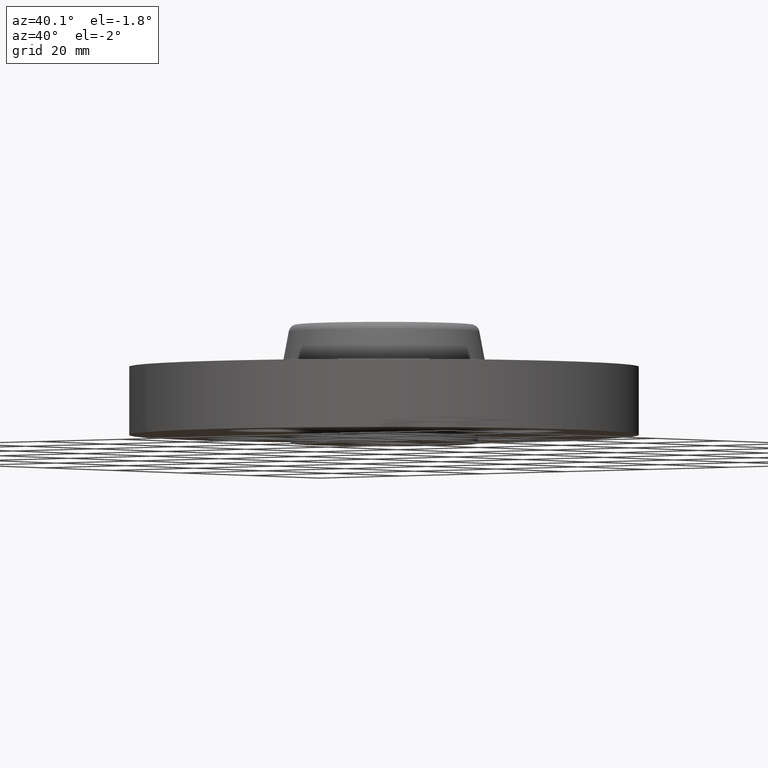
[diagram: clean part render]
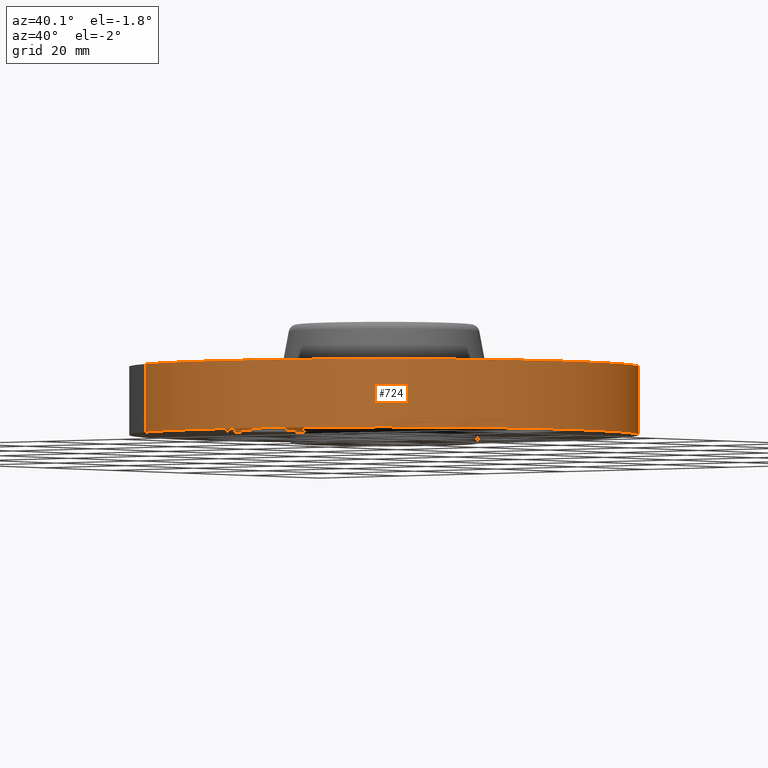
[diagram: same view with one face highlighted and labeled with its STEP entity id]
A machine part, auxiliary view. The second image highlights one B-rep face of the part: STEP entity #724.
In plain terms, the highlighted cylindrical surface (partial cylindrical patch) has radius 47.625 mm, axis along (0, 0, -1).
Its self-contained STEP definition (entity closure, byte-faithful):
#517=AXIS2_PLACEMENT_3D('Circle Axis2P3D',#515,#516,$) ;
#711=AXIS2_PLACEMENT_3D('Cylinder Axis2P3D',#708,#709,#710) ;
#715=AXIS2_PLACEMENT_3D('Circle Axis2P3D',#713,#714,$) ;
#510=CARTESIAN_POINT('Vertex',(-0.898922884866,-1.64546730358,0.)) ;
#512=CARTESIAN_POINT('Vertex',(0.898922884866,1.64546730354,0.)) ;
#515=CARTESIAN_POINT('Axis2P3D Location',(8.39223703654E-016,-1.81193992444E-011,0.)) ;
#675=CARTESIAN_POINT('Line Origine',(-0.898922884888,-1.64546730355,0.250000000001)) ;
#679=CARTESIAN_POINT('Vertex',(-0.898922884888,-1.64546730355,0.499999999997)) ;
#686=CARTESIAN_POINT('Vertex',(0.898922884888,1.64546730355,0.499999999997)) ;
#689=CARTESIAN_POINT('Line Origine',(0.898922884888,1.64546730355,0.250000000001)) ;
#708=CARTESIAN_POINT('Axis2P3D Location',(0.,0.,0.373750000001)) ;
#713=CARTESIAN_POINT('Axis2P3D Location',(0.,0.,0.499999999997)) ;
#516=DIRECTION('Axis2P3D Direction',(0.,0.,-0.0393700787402)) ;
#676=DIRECTION('Vector Direction',(0.,0.,-0.0393700787402)) ;
#690=DIRECTION('Vector Direction',(0.,0.,-0.0393700787402)) ;
#709=DIRECTION('Axis2P3D Direction',(0.,0.,-0.0393700787402)) ;
#710=DIRECTION('Axis2P3D XDirection',(0.0188750212049,0.0345504945626,0.)) ;
#714=DIRECTION('Axis2P3D Direction',(0.,0.,-0.0393700787402)) ;
#677=VECTOR('Line Direction',#676,0.0393700787402) ;
#691=VECTOR('Line Direction',#690,0.0393700787402) ;
#719=ORIENTED_EDGE('',*,*,#519,.F.) ;
#720=ORIENTED_EDGE('',*,*,#693,.T.) ;
#721=ORIENTED_EDGE('',*,*,#717,.T.) ;
#722=ORIENTED_EDGE('',*,*,#681,.F.) ;
#724=ADVANCED_FACE('PartBody',(#723),#712,.T.) ;
#518=CIRCLE('generated circle',#517,1.87500000001) ;
#716=CIRCLE('generated circle',#715,1.87500000001) ;
#712=CYLINDRICAL_SURFACE('generated cylinder',#711,1.87500000001) ;
#519=EDGE_CURVE('',#513,#511,#518,.T.) ;
#681=EDGE_CURVE('',#511,#680,#678,.F.) ;
#693=EDGE_CURVE('',#513,#687,#692,.F.) ;
#717=EDGE_CURVE('',#687,#680,#716,.T.) ;
#718=EDGE_LOOP('',(#719,#720,#721,#722)) ;
#723=FACE_OUTER_BOUND('',#718,.T.) ;
#678=LINE('Line',#675,#677) ;
#692=LINE('Line',#689,#691) ;
#511=VERTEX_POINT('',#510) ;
#513=VERTEX_POINT('',#512) ;
#680=VERTEX_POINT('',#679) ;
#687=VERTEX_POINT('',#686) ;